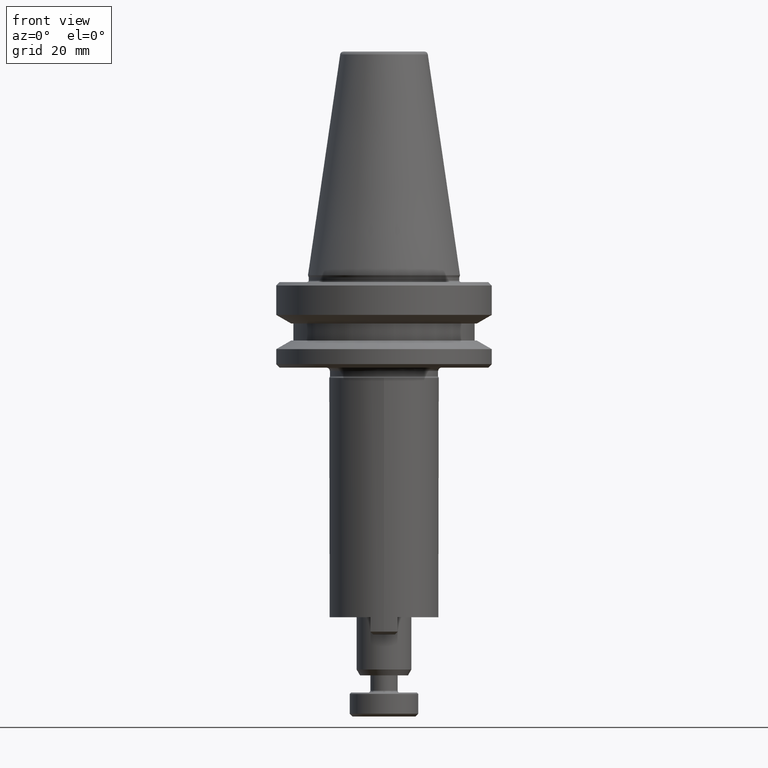
[diagram: clean part render]
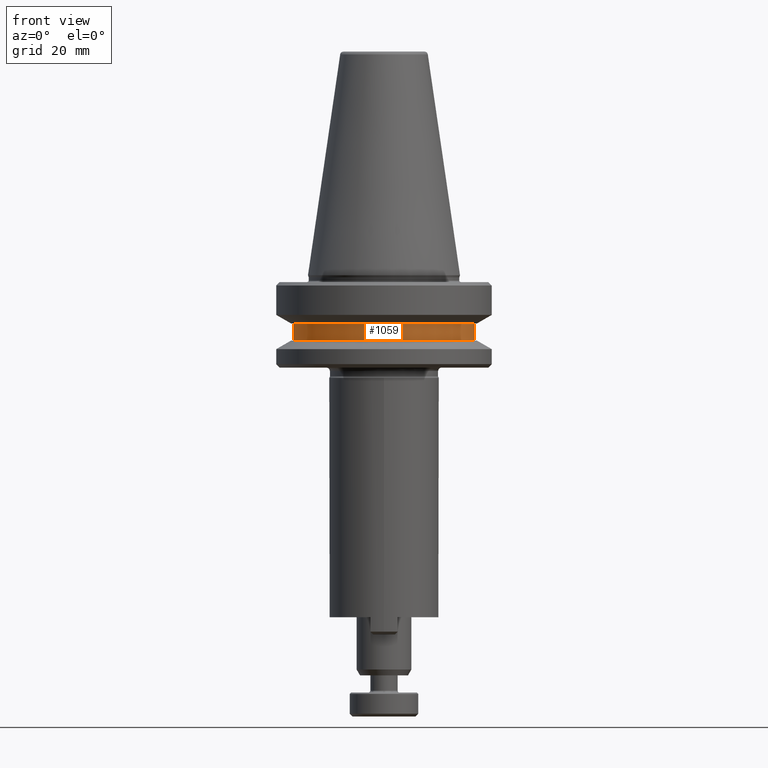
[diagram: same view with one face highlighted and labeled with its STEP entity id]
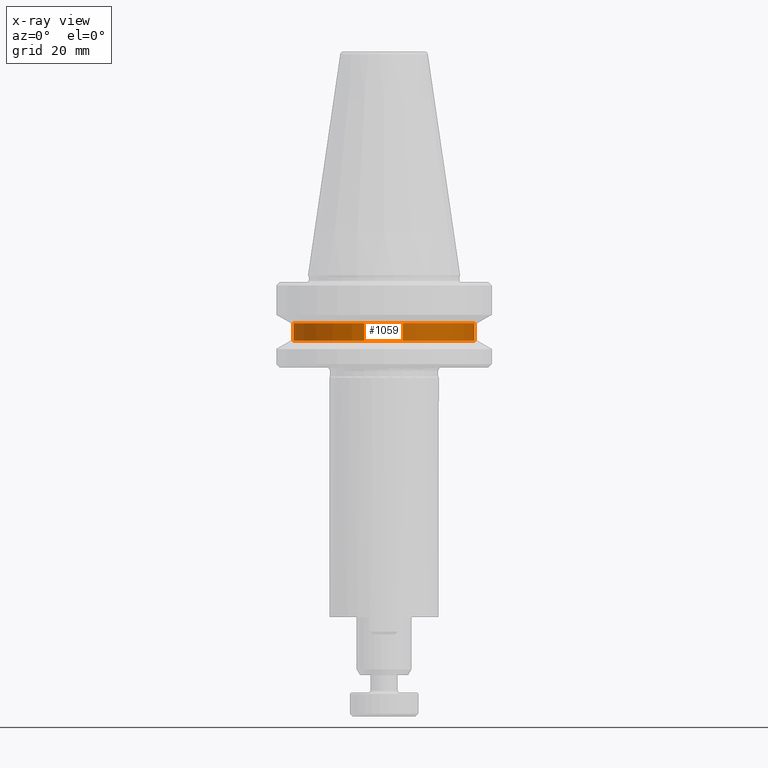
[diagram: x-ray of the same camera — body ghosted, the highlighted face saturated]
A machine part, front view. The second image highlights one B-rep face of the part: STEP entity #1059.
The next image is the same camera in x-ray: the body ghosted, the highlighted face saturated — about 0% of this face is hidden behind the body in this view.
In plain terms, the highlighted cylindrical surface (partial cylindrical patch) has radius 26.5 mm, axis along (-0, -0, -1).
Its self-contained STEP definition (entity closure, byte-faithful):
#294 = CARTESIAN_POINT ( 'NONE',  ( 130.1964639249378900, 110.6694344999690100, -1.638959004981580800 ) ) ;
#308 = EDGE_CURVE ( 'NONE', #345, #1110, #2259, .T. ) ;
#322 = CARTESIAN_POINT ( 'NONE',  ( 77.19646393566412700, 110.6694344999690100, 113.2610409950169800 ) ) ;
#332 = CARTESIAN_POINT ( 'NONE',  ( 103.6964639303010100, 110.6694344999690100, 108.2610409950168700 ) ) ;
#345 = VERTEX_POINT ( 'NONE', #322 ) ;
#362 = DIRECTION ( 'NONE',  ( -0.0000000000000000000, -0.0000000000000000000, -1.000000000000000000 ) ) ;
#365 = AXIS2_PLACEMENT_3D ( 'NONE', #1399, #362, #521 ) ;
#379 = CIRCLE ( 'NONE', #365, 26.49999999463688400 ) ;
#424 = FACE_OUTER_BOUND ( 'NONE', #1267, .T. ) ;
#454 = CIRCLE ( 'NONE', #1221, 26.49999999463688400 ) ;
#474 = CARTESIAN_POINT ( 'NONE',  ( 77.19646393566412700, 110.6694344999690100, -1.638959004981580800 ) ) ;
#521 = DIRECTION ( 'NONE',  ( -1.000000000000000000, 0.0000000000000000000, 0.0000000000000000000 ) ) ;
#713 = AXIS2_PLACEMENT_3D ( 'NONE', #1229, #2117, #2285 ) ;
#792 = CYLINDRICAL_SURFACE ( 'NONE', #713, 26.49999999463688400 ) ;
#800 = DIRECTION ( 'NONE',  ( -0.0000000000000000000, -0.0000000000000000000, -1.000000000000000000 ) ) ;
#806 = ORIENTED_EDGE ( 'NONE', *, *, #1046, .T. ) ;
#831 = DIRECTION ( 'NONE',  ( -0.0000000000000000000, -0.0000000000000000000, -1.000000000000000000 ) ) ;
#940 = DIRECTION ( 'NONE',  ( -0.0000000000000000000, -0.0000000000000000000, -1.000000000000000000 ) ) ;
#958 = VECTOR ( 'NONE', #940, 1000.000000000000000 ) ;
#1038 = VERTEX_POINT ( 'NONE', #1573 ) ;
#1046 = EDGE_CURVE ( 'NONE', #1038, #345, #379, .T. ) ;
#1059 = ADVANCED_FACE ( 'NONE', ( #424 ), #792, .T. ) ;
#1110 = VERTEX_POINT ( 'NONE', #1245 ) ;
#1221 = AXIS2_PLACEMENT_3D ( 'NONE', #332, #831, #1915 ) ;
#1229 = CARTESIAN_POINT ( 'NONE',  ( 103.6964639303010100, 110.6694344999690100, -1.638959004981580800 ) ) ;
#1245 = CARTESIAN_POINT ( 'NONE',  ( 77.19646393566412700, 110.6694344999690100, 108.2610409950168700 ) ) ;
#1267 = EDGE_LOOP ( 'NONE', ( #1427, #806, #2144, #1494 ) ) ;
#1312 = VECTOR ( 'NONE', #800, 1000.000000000000000 ) ;
#1399 = CARTESIAN_POINT ( 'NONE',  ( 103.6964639303010100, 110.6694344999690100, 113.2610409950169800 ) ) ;
#1427 = ORIENTED_EDGE ( 'NONE', *, *, #1694, .F. ) ;
#1481 = VERTEX_POINT ( 'NONE', #2228 ) ;
#1494 = ORIENTED_EDGE ( 'NONE', *, *, #2176, .F. ) ;
#1573 = CARTESIAN_POINT ( 'NONE',  ( 130.1964639249378900, 110.6694344999690100, 113.2610409950169800 ) ) ;
#1694 = EDGE_CURVE ( 'NONE', #1038, #1481, #1796, .T. ) ;
#1796 = LINE ( 'NONE', #294, #958 ) ;
#1915 = DIRECTION ( 'NONE',  ( -1.000000000000000000, 0.0000000000000000000, 0.0000000000000000000 ) ) ;
#2117 = DIRECTION ( 'NONE',  ( -0.0000000000000000000, -0.0000000000000000000, -1.000000000000000000 ) ) ;
#2144 = ORIENTED_EDGE ( 'NONE', *, *, #308, .T. ) ;
#2176 = EDGE_CURVE ( 'NONE', #1481, #1110, #454, .T. ) ;
#2228 = CARTESIAN_POINT ( 'NONE',  ( 130.1964639249378900, 110.6694344999690100, 108.2610409950168700 ) ) ;
#2259 = LINE ( 'NONE', #474, #1312 ) ;
#2285 = DIRECTION ( 'NONE',  ( -1.000000000000000000, 0.0000000000000000000, 0.0000000000000000000 ) ) ;